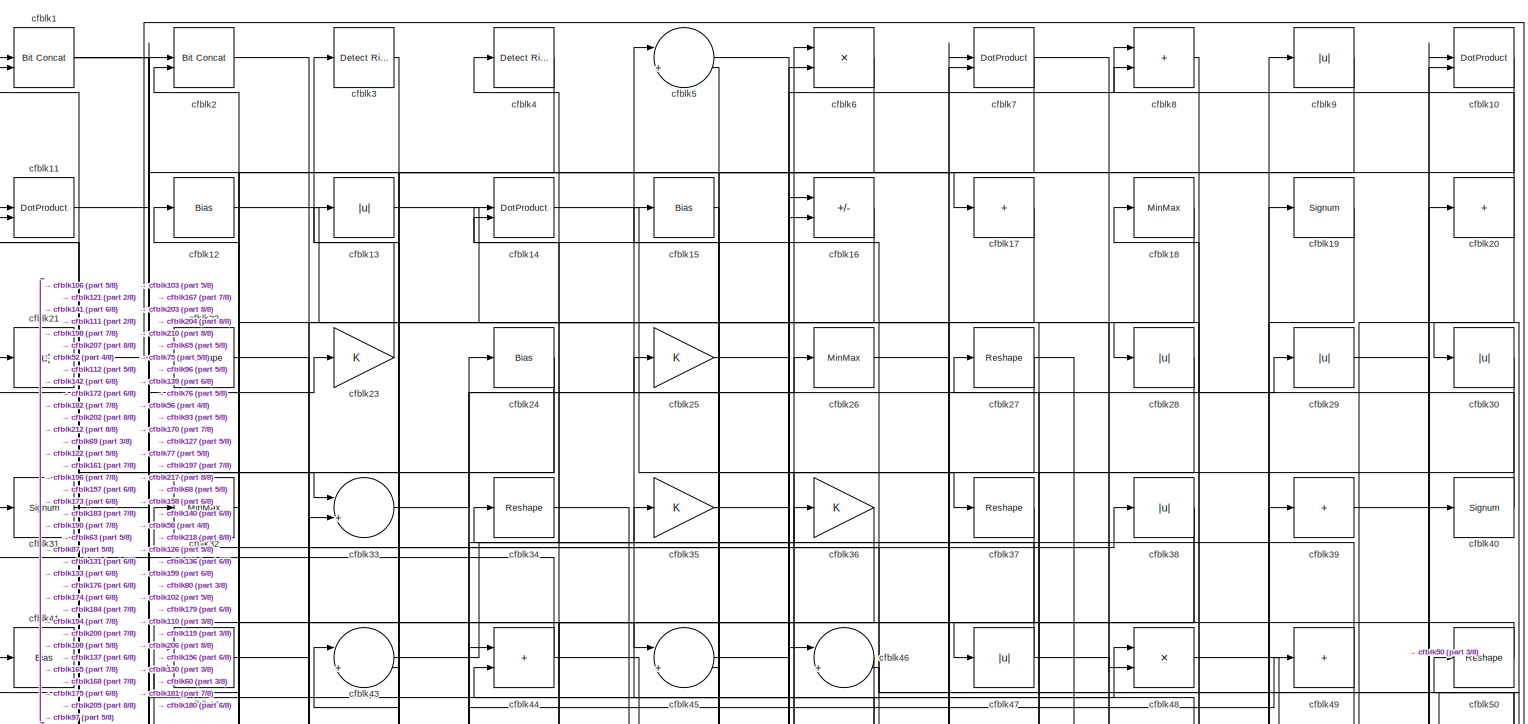
[diagram: root canvas - part 1/8, full width, top band]
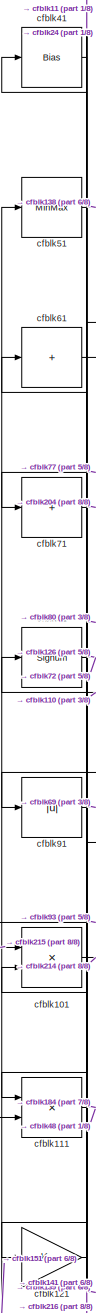
[diagram: root canvas - part 2/8, middle left region]
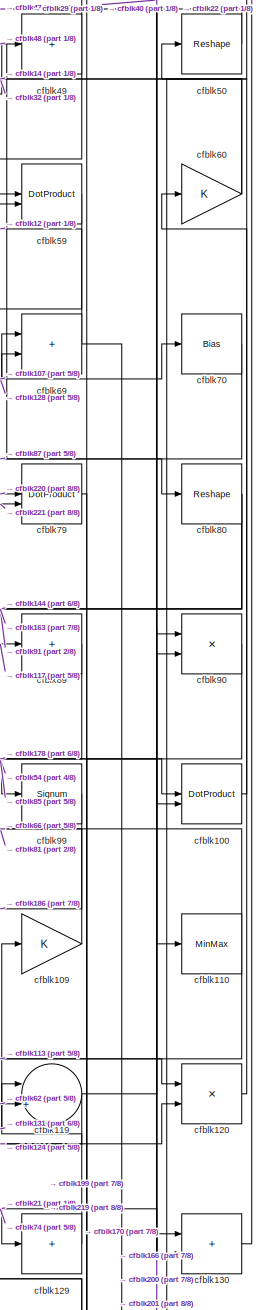
[diagram: root canvas - part 3/8, middle right region]
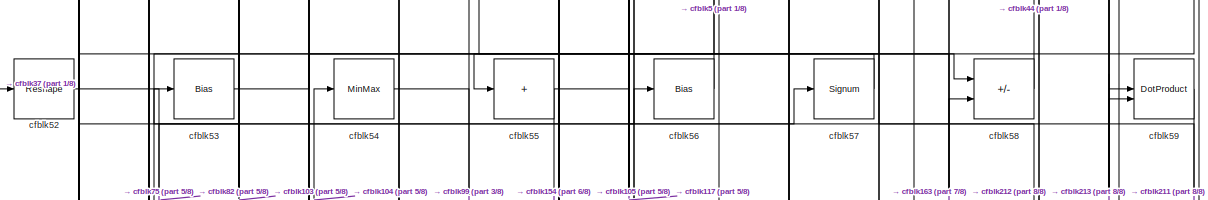
[diagram: root canvas - part 4/8, full width, top band]
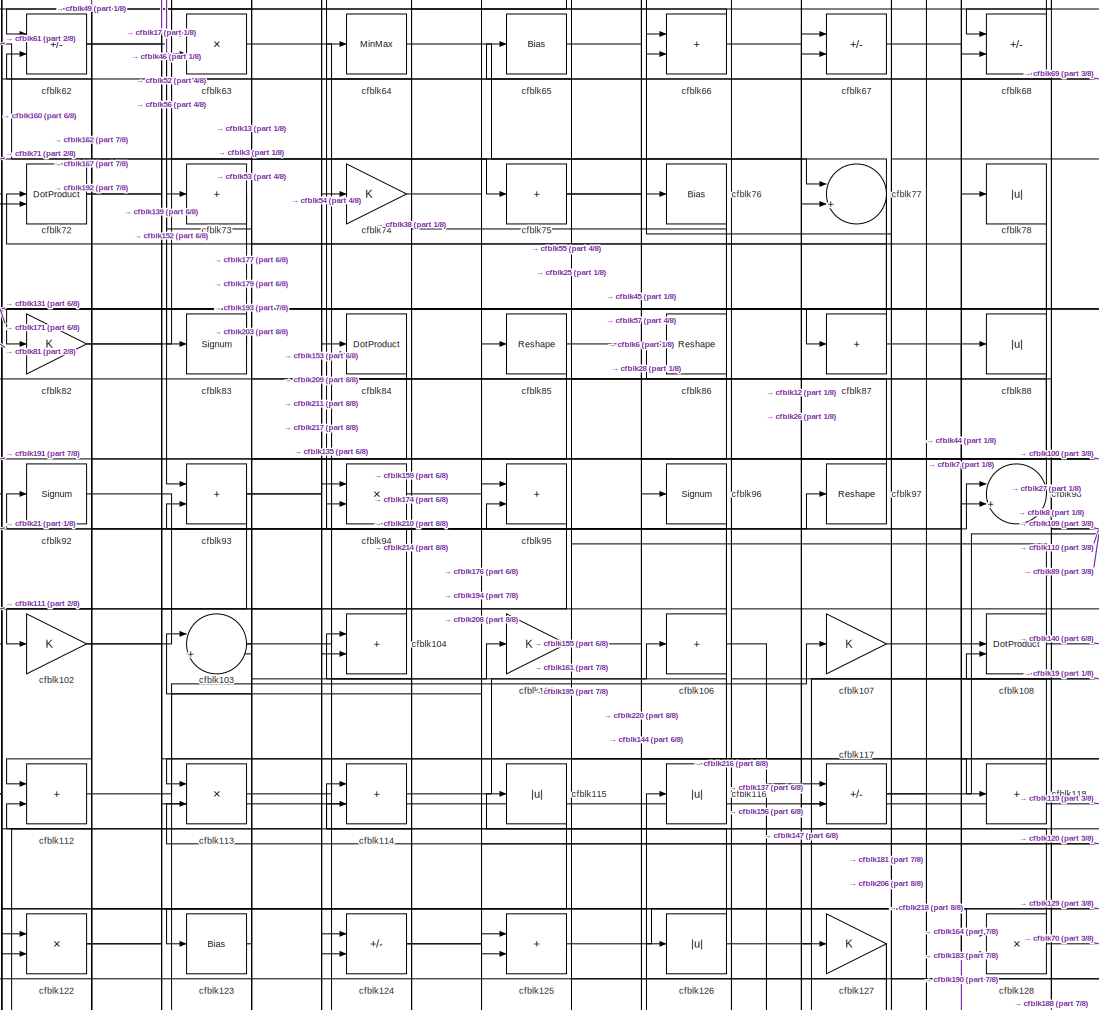
[diagram: root canvas - part 5/8, central region]
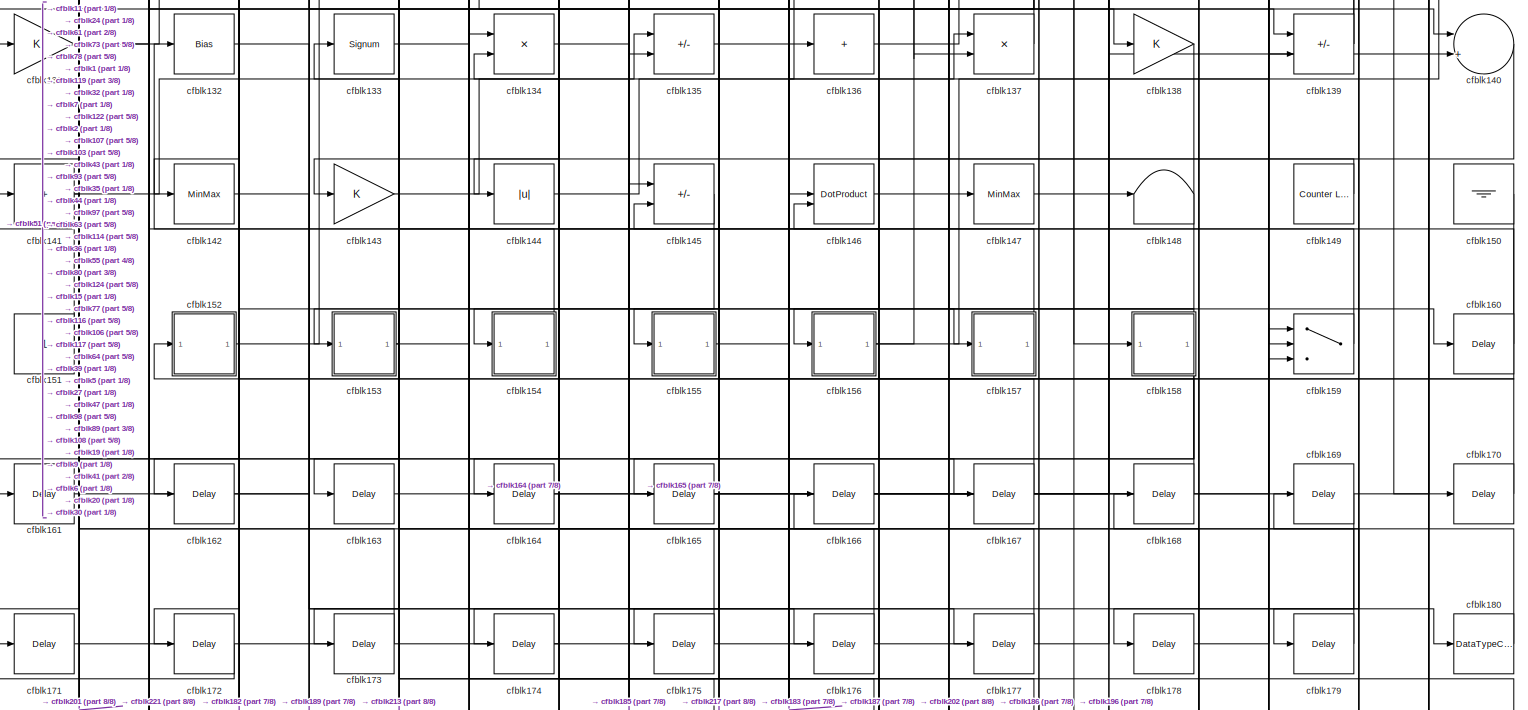
[diagram: root canvas - part 6/8, full width, bottom band]
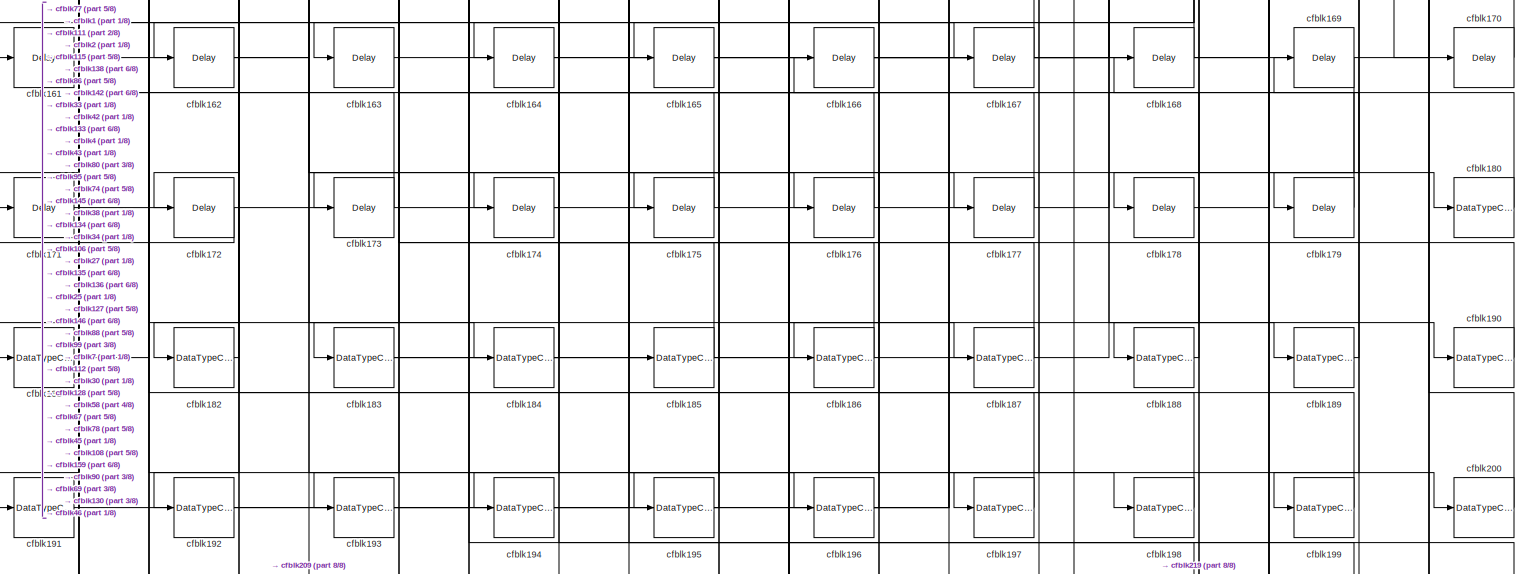
[diagram: root canvas - part 7/8, full width, bottom band]
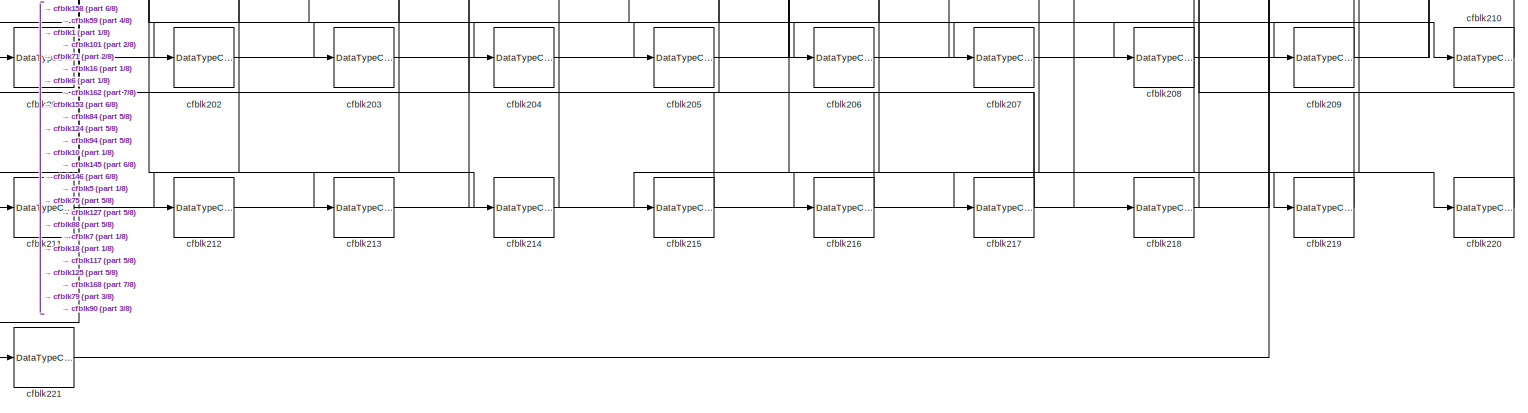
[diagram: root canvas - part 8/8, full width, bottom band]
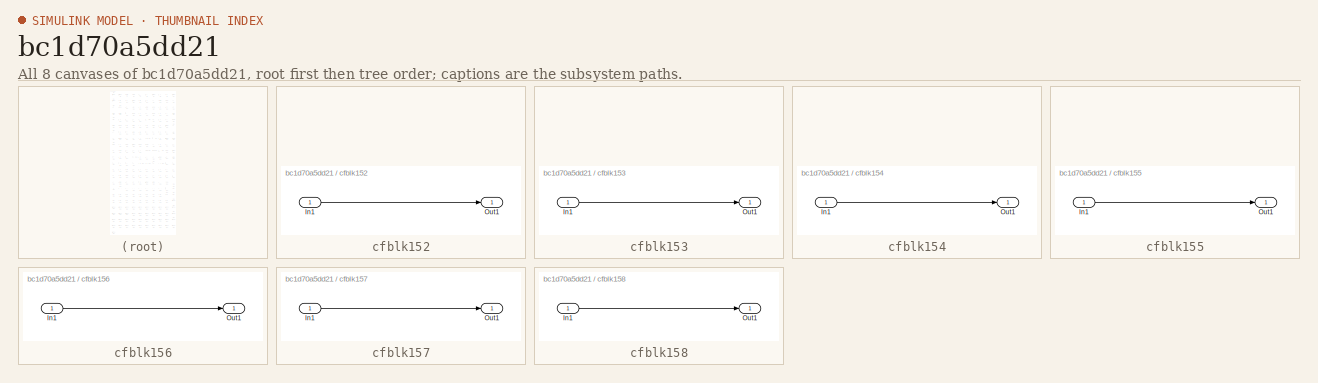
[diagram: thumbnail index - all 8 canvases of the model, root first then tree order]
MODEL slx_bc1d70a5dd21
KIND model
CONFIG AbsTol = auto
CONFIG EnableMultiTasking = off
CONFIG FixedStep = auto
CONFIG MaxStep = auto
CONFIG MinStep = auto
CONFIG RelTol = 1e-3
CONFIG SampleTimeConstraint = Unconstrained
CONFIG SolverName = VariableStepAuto
CONFIG StartTime = 0.0
CONFIG StopTime = 10.0
BLOCK [Reference] cfblk1  REF=hdlsllib/Logic and Bit
Operations/Bit Concat
  SourceBlock = hdlsllib/Logic and Bit\nOperations/Bit Concat
  SourceType = Bit Concat
BLOCK [DotProduct] cfblk10
  OutDataTypeStr = Inherit: Inherit via internal rule
BLOCK [DotProduct] cfblk100
  OutDataTypeStr = Inherit: Inherit via internal rule
BLOCK [Product] cfblk101
  Inputs = */
  RndMeth = Zero
  SaturateOnIntegerOverflow = on
BLOCK [Gain] cfblk102
BLOCK [Sum] cfblk103
  Inputs = |++
BLOCK [Sum] cfblk104
  IconShape = rectangular
BLOCK [Gain] cfblk105
BLOCK [Sum] cfblk106
  IconShape = rectangular
  Inputs = +
BLOCK [Gain] cfblk107
BLOCK [DotProduct] cfblk108
  OutDataTypeStr = Inherit: Inherit via internal rule
BLOCK [Gain] cfblk109
BLOCK [DotProduct] cfblk11
  OutDataTypeStr = Inherit: Inherit via internal rule
BLOCK [MinMax] cfblk110
BLOCK [Product] cfblk111
  Inputs = */
  RndMeth = Zero
  SaturateOnIntegerOverflow = on
BLOCK [Sum] cfblk112
  IconShape = rectangular
BLOCK [Product] cfblk113
  Inputs = */
  RndMeth = Zero
  SaturateOnIntegerOverflow = on
BLOCK [Sum] cfblk114
  IconShape = rectangular
BLOCK [Abs] cfblk115
  SaturateOnIntegerOverflow = off
BLOCK [Abs] cfblk116
  SaturateOnIntegerOverflow = off
BLOCK [Sum] cfblk117
  IconShape = rectangular
  Inputs = +-
BLOCK [Sum] cfblk118
  IconShape = rectangular
  Inputs = +
BLOCK [Sum] cfblk119
  Inputs = |++
BLOCK [Bias] cfblk12
  Bias = 0.0
  SaturateOnIntegerOverflow = off
BLOCK [Product] cfblk120
  Inputs = */
  RndMeth = Zero
  SaturateOnIntegerOverflow = on
BLOCK [Gain] cfblk121
BLOCK [Product] cfblk122
  Inputs = */
  RndMeth = Zero
  SaturateOnIntegerOverflow = on
BLOCK [Bias] cfblk123
  Bias = 0.0
  SaturateOnIntegerOverflow = off
BLOCK [Sum] cfblk124
  IconShape = rectangular
  Inputs = +-
BLOCK [Sum] cfblk125
  IconShape = rectangular
BLOCK [Abs] cfblk126
  SaturateOnIntegerOverflow = off
BLOCK [Gain] cfblk127
BLOCK [Product] cfblk128
  Inputs = */
  RndMeth = Zero
  SaturateOnIntegerOverflow = on
BLOCK [Sum] cfblk129
  IconShape = rectangular
  Inputs = +
BLOCK [Abs] cfblk13
  SaturateOnIntegerOverflow = off
BLOCK [Sum] cfblk130
  IconShape = rectangular
BLOCK [Gain] cfblk131
BLOCK [Bias] cfblk132
  Bias = 0.0
  SaturateOnIntegerOverflow = off
BLOCK [Signum] cfblk133
BLOCK [Product] cfblk134
  Inputs = */
  RndMeth = Zero
  SaturateOnIntegerOverflow = on
BLOCK [Sum] cfblk135
  IconShape = rectangular
  Inputs = +-
BLOCK [Sum] cfblk136
  IconShape = rectangular
  Inputs = +
BLOCK [Product] cfblk137
  Inputs = */
  RndMeth = Zero
  SaturateOnIntegerOverflow = on
BLOCK [Gain] cfblk138
BLOCK [Sum] cfblk139
  IconShape = rectangular
  Inputs = +-
BLOCK [DotProduct] cfblk14
  OutDataTypeStr = Inherit: Inherit via internal rule
BLOCK [Sum] cfblk140
  Inputs = |++
BLOCK [Sum] cfblk141
  IconShape = rectangular
  Inputs = +
BLOCK [MinMax] cfblk142
BLOCK [Gain] cfblk143
BLOCK [Abs] cfblk144
  SaturateOnIntegerOverflow = off
BLOCK [Sum] cfblk145
  IconShape = rectangular
  Inputs = +-
BLOCK [DotProduct] cfblk146
  OutDataTypeStr = Inherit: Inherit via internal rule
BLOCK [MinMax] cfblk147
BLOCK [Terminator] cfblk148
BLOCK [Reference] cfblk149  REF=hdlsllib/Sources/Counter
Limited
  SourceBlock = hdlsllib/Sources/Counter\nLimited
  SourceType = Counter Limited
BLOCK [Bias] cfblk15
  Bias = 0.0
  SaturateOnIntegerOverflow = off
BLOCK [Ground] cfblk150
BLOCK [Constant] cfblk151
  SampleTime = -1
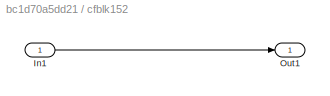
BLOCK [SubSystem] cfblk152
  LibrarySourceBlock = hdlsllib/Ports &\nSubsystems/Subsystem
BLOCK [Inport] cfblk152/In1
BLOCK [Outport] cfblk152/Out1
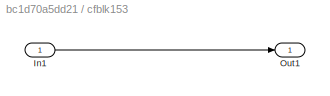
BLOCK [SubSystem] cfblk153
  LibrarySourceBlock = hdlsllib/Ports &\nSubsystems/Subsystem
BLOCK [Inport] cfblk153/In1
BLOCK [Outport] cfblk153/Out1
BLOCK [SubSystem] cfblk154
  LibrarySourceBlock = hdlsllib/Ports &\nSubsystems/Subsystem
BLOCK [Inport] cfblk154/In1
BLOCK [Outport] cfblk154/Out1
BLOCK [SubSystem] cfblk155
  LibrarySourceBlock = hdlsllib/Ports &\nSubsystems/Subsystem
BLOCK [Inport] cfblk155/In1
BLOCK [Outport] cfblk155/Out1
BLOCK [SubSystem] cfblk156
  LibrarySourceBlock = hdlsllib/Ports &\nSubsystems/Subsystem
BLOCK [Inport] cfblk156/In1
BLOCK [Outport] cfblk156/Out1
BLOCK [SubSystem] cfblk157
  LibrarySourceBlock = hdlsllib/Ports &\nSubsystems/Subsystem
BLOCK [Inport] cfblk157/In1
BLOCK [Outport] cfblk157/Out1
BLOCK [SubSystem] cfblk158
  LibrarySourceBlock = hdlsllib/Ports &\nSubsystems/Subsystem
BLOCK [Inport] cfblk158/In1
BLOCK [Outport] cfblk158/Out1
BLOCK [Switch] cfblk159
  InputSameDT = off
  SaturateOnIntegerOverflow = off
BLOCK [Sum] cfblk16
  IconShape = rectangular
  Inputs = +-
BLOCK [Delay] cfblk160
  InputPortMap = u0
  SampleTime = 1
BLOCK [Delay] cfblk161
  InputPortMap = u0
  SampleTime = 1
BLOCK [Delay] cfblk162
  InputPortMap = u0
  SampleTime = 1
BLOCK [Delay] cfblk163
  InputPortMap = u0
  SampleTime = 1
BLOCK [Delay] cfblk164
  InputPortMap = u0
  SampleTime = 1
BLOCK [Delay] cfblk165
  InputPortMap = u0
  SampleTime = 1
BLOCK [Delay] cfblk166
  InputPortMap = u0
  SampleTime = 1
BLOCK [Delay] cfblk167
  InputPortMap = u0
  SampleTime = 1
BLOCK [Delay] cfblk168
  InputPortMap = u0
  SampleTime = 1
BLOCK [Delay] cfblk169
  InputPortMap = u0
  SampleTime = 1
BLOCK [Sum] cfblk17
  IconShape = rectangular
  Inputs = +
BLOCK [Delay] cfblk170
  InputPortMap = u0
  SampleTime = 1
BLOCK [Delay] cfblk171
  InputPortMap = u0
  SampleTime = 1
BLOCK [Delay] cfblk172
  InputPortMap = u0
  SampleTime = 1
BLOCK [Delay] cfblk173
  InputPortMap = u0
  SampleTime = 1
BLOCK [Delay] cfblk174
  InputPortMap = u0
  SampleTime = 1
BLOCK [Delay] cfblk175
  InputPortMap = u0
  SampleTime = 1
BLOCK [Delay] cfblk176
  InputPortMap = u0
  SampleTime = 1
BLOCK [Delay] cfblk177
  InputPortMap = u0
  SampleTime = 1
BLOCK [Delay] cfblk178
  InputPortMap = u0
  SampleTime = 1
BLOCK [Delay] cfblk179
  InputPortMap = u0
  SampleTime = 1
BLOCK [MinMax] cfblk18
BLOCK [DataTypeConversion] cfblk180
  OutDataTypeStr = uint8
  RndMeth = Floor
  SaturateOnIntegerOverflow = off
BLOCK [DataTypeConversion] cfblk181
  OutDataTypeStr = uint8
  RndMeth = Floor
  SaturateOnIntegerOverflow = off
BLOCK [DataTypeConversion] cfblk182
  OutDataTypeStr = uint8
  RndMeth = Floor
  SaturateOnIntegerOverflow = off
BLOCK [DataTypeConversion] cfblk183
  RndMeth = Floor
  SaturateOnIntegerOverflow = off
BLOCK [DataTypeConversion] cfblk184
  OutDataTypeStr = uint8
  RndMeth = Floor
  SaturateOnIntegerOverflow = off
BLOCK [DataTypeConversion] cfblk185
  OutDataTypeStr = uint8
  RndMeth = Floor
  SaturateOnIntegerOverflow = off
BLOCK [DataTypeConversion] cfblk186
  OutDataTypeStr = uint8
  RndMeth = Floor
  SaturateOnIntegerOverflow = off
BLOCK [DataTypeConversion] cfblk187
  OutDataTypeStr = uint8
  RndMeth = Floor
  SaturateOnIntegerOverflow = off
BLOCK [DataTypeConversion] cfblk188
  OutDataTypeStr = uint8
  RndMeth = Floor
  SaturateOnIntegerOverflow = off
BLOCK [DataTypeConversion] cfblk189
  OutDataTypeStr = uint8
  RndMeth = Floor
  SaturateOnIntegerOverflow = off
BLOCK [Signum] cfblk19
BLOCK [DataTypeConversion] cfblk190
  OutDataTypeStr = uint8
  RndMeth = Floor
  SaturateOnIntegerOverflow = off
BLOCK [DataTypeConversion] cfblk191
  OutDataTypeStr = uint8
  RndMeth = Floor
  SaturateOnIntegerOverflow = off
BLOCK [DataTypeConversion] cfblk192
  OutDataTypeStr = uint8
  RndMeth = Floor
  SaturateOnIntegerOverflow = off
BLOCK [DataTypeConversion] cfblk193
  OutDataTypeStr = uint8
  RndMeth = Floor
  SaturateOnIntegerOverflow = off
BLOCK [DataTypeConversion] cfblk194
  OutDataTypeStr = uint8
  RndMeth = Floor
  SaturateOnIntegerOverflow = off
BLOCK [DataTypeConversion] cfblk195
  OutDataTypeStr = uint8
  RndMeth = Floor
  SaturateOnIntegerOverflow = off
BLOCK [DataTypeConversion] cfblk196
  RndMeth = Floor
  SaturateOnIntegerOverflow = off
BLOCK [DataTypeConversion] cfblk197
  OutDataTypeStr = uint8
  RndMeth = Floor
  SaturateOnIntegerOverflow = off
BLOCK [DataTypeConversion] cfblk198
  OutDataTypeStr = uint8
  RndMeth = Floor
  SaturateOnIntegerOverflow = off
BLOCK [DataTypeConversion] cfblk199
  OutDataTypeStr = uint8
  RndMeth = Floor
  SaturateOnIntegerOverflow = off
BLOCK [Reference] cfblk2  REF=hdlsllib/Logic and Bit
Operations/Bit Concat
  SourceBlock = hdlsllib/Logic and Bit\nOperations/Bit Concat
  SourceType = Bit Concat
BLOCK [Sum] cfblk20
  IconShape = rectangular
  Inputs = +
BLOCK [DataTypeConversion] cfblk200
  OutDataTypeStr = uint8
  RndMeth = Floor
  SaturateOnIntegerOverflow = off
BLOCK [DataTypeConversion] cfblk201
  OutDataTypeStr = uint8
  RndMeth = Floor
  SaturateOnIntegerOverflow = off
BLOCK [DataTypeConversion] cfblk202
  OutDataTypeStr = uint8
  RndMeth = Floor
  SaturateOnIntegerOverflow = off
BLOCK [DataTypeConversion] cfblk203
  OutDataTypeStr = uint8
  RndMeth = Floor
  SaturateOnIntegerOverflow = off
BLOCK [DataTypeConversion] cfblk204
  OutDataTypeStr = uint8
  RndMeth = Floor
  SaturateOnIntegerOverflow = off
BLOCK [DataTypeConversion] cfblk205
  OutDataTypeStr = uint8
  RndMeth = Floor
  SaturateOnIntegerOverflow = off
BLOCK [DataTypeConversion] cfblk206
  OutDataTypeStr = uint8
  RndMeth = Floor
  SaturateOnIntegerOverflow = off
BLOCK [DataTypeConversion] cfblk207
  OutDataTypeStr = uint8
  RndMeth = Floor
  SaturateOnIntegerOverflow = off
BLOCK [DataTypeConversion] cfblk208
  RndMeth = Floor
  SaturateOnIntegerOverflow = off
BLOCK [DataTypeConversion] cfblk209
  OutDataTypeStr = uint8
  RndMeth = Floor
  SaturateOnIntegerOverflow = off
BLOCK [Abs] cfblk21
  SaturateOnIntegerOverflow = off
BLOCK [DataTypeConversion] cfblk210
  OutDataTypeStr = uint8
  RndMeth = Floor
  SaturateOnIntegerOverflow = off
BLOCK [DataTypeConversion] cfblk211
  OutDataTypeStr = uint8
  RndMeth = Floor
  SaturateOnIntegerOverflow = off
BLOCK [DataTypeConversion] cfblk212
  OutDataTypeStr = uint8
  RndMeth = Floor
  SaturateOnIntegerOverflow = off
BLOCK [DataTypeConversion] cfblk213
  OutDataTypeStr = uint8
  RndMeth = Floor
  SaturateOnIntegerOverflow = off
BLOCK [DataTypeConversion] cfblk214
  OutDataTypeStr = uint8
  RndMeth = Floor
  SaturateOnIntegerOverflow = off
BLOCK [DataTypeConversion] cfblk215
  OutDataTypeStr = uint8
  RndMeth = Floor
  SaturateOnIntegerOverflow = off
BLOCK [DataTypeConversion] cfblk216
  OutDataTypeStr = uint8
  RndMeth = Floor
  SaturateOnIntegerOverflow = off
BLOCK [DataTypeConversion] cfblk217
  RndMeth = Floor
  SaturateOnIntegerOverflow = off
BLOCK [DataTypeConversion] cfblk218
  OutDataTypeStr = uint8
  RndMeth = Floor
  SaturateOnIntegerOverflow = off
BLOCK [DataTypeConversion] cfblk219
  OutDataTypeStr = uint8
  RndMeth = Floor
  SaturateOnIntegerOverflow = off
BLOCK [Reshape] cfblk22
BLOCK [DataTypeConversion] cfblk220
  OutDataTypeStr = uint8
  RndMeth = Floor
  SaturateOnIntegerOverflow = off
BLOCK [DataTypeConversion] cfblk221
  OutDataTypeStr = uint8
  RndMeth = Floor
  SaturateOnIntegerOverflow = off
BLOCK [Gain] cfblk23
BLOCK [Bias] cfblk24
  Bias = 0.0
  SaturateOnIntegerOverflow = off
BLOCK [Gain] cfblk25
BLOCK [MinMax] cfblk26
BLOCK [Reshape] cfblk27
BLOCK [Abs] cfblk28
  SaturateOnIntegerOverflow = off
BLOCK [Abs] cfblk29
  SaturateOnIntegerOverflow = off
BLOCK [Reference] cfblk3  REF=hdlsllib/Logic and Bit
Operations/Detect Rise
Positive
  SourceBlock = hdlsllib/Logic and Bit\nOperations/Detect Rise\nPositive
  SourceType = Detect Rise Positive
BLOCK [Abs] cfblk30
  SaturateOnIntegerOverflow = off
BLOCK [Signum] cfblk31
BLOCK [MinMax] cfblk32
BLOCK [Sum] cfblk33
  Inputs = |++
BLOCK [Reshape] cfblk34
BLOCK [Gain] cfblk35
BLOCK [Gain] cfblk36
BLOCK [Reshape] cfblk37
BLOCK [Abs] cfblk38
  SaturateOnIntegerOverflow = off
BLOCK [Sum] cfblk39
  IconShape = rectangular
  Inputs = +
BLOCK [Reference] cfblk4  REF=hdlsllib/Logic and Bit
Operations/Detect Rise
Positive
  SourceBlock = hdlsllib/Logic and Bit\nOperations/Detect Rise\nPositive
  SourceType = Detect Rise Positive
BLOCK [Signum] cfblk40
BLOCK [Bias] cfblk41
  Bias = 0.0
  SaturateOnIntegerOverflow = off
BLOCK [Product] cfblk42
  Inputs = */
  RndMeth = Zero
  SaturateOnIntegerOverflow = on
BLOCK [Sum] cfblk43
  Inputs = |++
BLOCK [Sum] cfblk44
  IconShape = rectangular
BLOCK [Sum] cfblk45
  Inputs = |++
BLOCK [Sum] cfblk46
  Inputs = |++
BLOCK [Abs] cfblk47
  SaturateOnIntegerOverflow = off
BLOCK [Product] cfblk48
  Inputs = */
  RndMeth = Zero
  SaturateOnIntegerOverflow = on
BLOCK [Sum] cfblk49
  IconShape = rectangular
  Inputs = +
BLOCK [Sum] cfblk5
  Inputs = |++
BLOCK [Reshape] cfblk50
BLOCK [MinMax] cfblk51
BLOCK [Reshape] cfblk52
BLOCK [Bias] cfblk53
  Bias = 0.0
  SaturateOnIntegerOverflow = off
BLOCK [MinMax] cfblk54
BLOCK [Sum] cfblk55
  IconShape = rectangular
  Inputs = +
BLOCK [Bias] cfblk56
  Bias = 0.0
  SaturateOnIntegerOverflow = off
BLOCK [Signum] cfblk57
BLOCK [Sum] cfblk58
  IconShape = rectangular
  Inputs = +-
BLOCK [DotProduct] cfblk59
  OutDataTypeStr = Inherit: Inherit via internal rule
BLOCK [Product] cfblk6
  Inputs = */
  RndMeth = Zero
  SaturateOnIntegerOverflow = on
BLOCK [Gain] cfblk60
BLOCK [Sum] cfblk61
  IconShape = rectangular
  Inputs = +
BLOCK [Sum] cfblk62
  IconShape = rectangular
  Inputs = +-
BLOCK [Product] cfblk63
  Inputs = */
  RndMeth = Zero
  SaturateOnIntegerOverflow = on
BLOCK [MinMax] cfblk64
BLOCK [Bias] cfblk65
  Bias = 0.0
  SaturateOnIntegerOverflow = off
BLOCK [Sum] cfblk66
  IconShape = rectangular
BLOCK [Sum] cfblk67
  IconShape = rectangular
  Inputs = +-
BLOCK [Sum] cfblk68
  IconShape = rectangular
  Inputs = +-
BLOCK [Sum] cfblk69
  IconShape = rectangular
BLOCK [DotProduct] cfblk7
  OutDataTypeStr = Inherit: Inherit via internal rule
BLOCK [Bias] cfblk70
  Bias = 0.0
  SaturateOnIntegerOverflow = off
BLOCK [Sum] cfblk71
  IconShape = rectangular
  Inputs = +
BLOCK [DotProduct] cfblk72
  OutDataTypeStr = Inherit: Inherit via internal rule
BLOCK [Sum] cfblk73
  IconShape = rectangular
  Inputs = +
BLOCK [Gain] cfblk74
BLOCK [Sum] cfblk75
  IconShape = rectangular
  Inputs = +
BLOCK [Bias] cfblk76
  Bias = 0.0
  SaturateOnIntegerOverflow = off
BLOCK [Sum] cfblk77
  Inputs = |++
BLOCK [Abs] cfblk78
  SaturateOnIntegerOverflow = off
BLOCK [DotProduct] cfblk79
  OutDataTypeStr = Inherit: Inherit via internal rule
BLOCK [Sum] cfblk8
  IconShape = rectangular
BLOCK [Reshape] cfblk80
BLOCK [Signum] cfblk81
BLOCK [Gain] cfblk82
BLOCK [Signum] cfblk83
BLOCK [DotProduct] cfblk84
  OutDataTypeStr = Inherit: Inherit via internal rule
BLOCK [Reshape] cfblk85
BLOCK [Reshape] cfblk86
BLOCK [Sum] cfblk87
  IconShape = rectangular
  Inputs = +
BLOCK [Abs] cfblk88
  SaturateOnIntegerOverflow = off
BLOCK [Sum] cfblk89
  IconShape = rectangular
  Inputs = +
BLOCK [Abs] cfblk9
  SaturateOnIntegerOverflow = off
BLOCK [Product] cfblk90
  Inputs = */
  RndMeth = Zero
  SaturateOnIntegerOverflow = on
BLOCK [Abs] cfblk91
  SaturateOnIntegerOverflow = off
BLOCK [Signum] cfblk92
BLOCK [Sum] cfblk93
  IconShape = rectangular
BLOCK [Product] cfblk94
  Inputs = */
  RndMeth = Zero
  SaturateOnIntegerOverflow = on
BLOCK [Sum] cfblk95
  IconShape = rectangular
BLOCK [Signum] cfblk96
BLOCK [Reshape] cfblk97
BLOCK [Sum] cfblk98
  Inputs = |++
BLOCK [Signum] cfblk99
LINE cfblk100:1 -> cfblk50:1
LINE cfblk101:1 -> cfblk214:1
NET cfblk102:1 -> cfblk104:2, cfblk88:1
NET cfblk103:1 -> cfblk53:1, cfblk6:2
LINE cfblk104:1 -> cfblk54:1
LINE cfblk105:1 -> cfblk57:1
NET cfblk106:1 -> cfblk137:2, cfblk195:1, cfblk21:1, cfblk62:2
LINE cfblk107:1 -> cfblk69:2
NET cfblk108:1 -> cfblk140:1, cfblk65:1
LINE cfblk109:1 -> cfblk66:1
LINE cfblk10:1 -> cfblk205:1
NET cfblk110:1 -> cfblk113:1, cfblk81:1
NET cfblk111:1 -> cfblk184:1, cfblk48:1
LINE cfblk112:1 -> cfblk85:1
LINE cfblk113:1 -> cfblk105:1
LINE cfblk114:1 -> cfblk106:1
LINE cfblk115:1 -> cfblk162:1
LINE cfblk116:1 -> cfblk92:1
NET cfblk117:1 -> cfblk218:1, cfblk89:1
LINE cfblk118:1 -> cfblk86:1
NET cfblk119:1 -> cfblk113:2, cfblk40:1
LINE cfblk11:1 -> cfblk17:1
LINE cfblk120:1 -> cfblk60:1
LINE cfblk121:1 -> cfblk11:1
NET cfblk122:1 -> cfblk139:2, cfblk38:1
LINE cfblk123:1 -> cfblk103:2
NET cfblk124:1 -> cfblk120:2, cfblk176:1
LINE cfblk125:1 -> cfblk128:1
NET cfblk126:1 -> cfblk104:1, cfblk19:1
NET cfblk127:1 -> cfblk181:1, cfblk206:1
NET cfblk128:1 -> cfblk115:1, cfblk70:1
LINE cfblk129:1 -> cfblk109:1
LINE cfblk12:1 -> cfblk127:1
LINE cfblk130:1 -> cfblk22:1
NET cfblk131:1 -> cfblk119:1, cfblk24:1
LINE cfblk132:1 -> cfblk177:1
LINE cfblk133:1 -> cfblk35:1
LINE cfblk134:1 -> cfblk185:1
LINE cfblk135:1 -> cfblk187:1
LINE cfblk136:1 -> cfblk39:1
LINE cfblk137:1 -> cfblk5:2
LINE cfblk138:1 -> cfblk182:1
NET cfblk139:1 -> cfblk41:1, cfblk6:1
LINE cfblk13:1 -> cfblk48:2
LINE cfblk140:1 -> cfblk156:1
NET cfblk141:1 -> cfblk61:1, cfblk9:1
LINE cfblk142:1 -> cfblk189:1
LINE cfblk143:1 -> cfblk135:1
LINE cfblk144:1 -> cfblk116:1
LINE cfblk145:1 -> cfblk164:1
LINE cfblk146:1 -> cfblk160:1
LINE cfblk147:1 -> cfblk148:1
LINE cfblk149:1 -> cfblk143:1
LINE cfblk14:1 -> cfblk37:1
LINE cfblk150:1 -> cfblk152:1
LINE cfblk151:1 -> cfblk51:1
LINE cfblk152/In1:1 -> cfblk152/Out1:1
LINE cfblk152:1 -> cfblk107:1
LINE cfblk153/In1:1 -> cfblk153/Out1:1
NET cfblk153:1 -> cfblk213:1, cfblk97:1
LINE cfblk154/In1:1 -> cfblk154/Out1:1
LINE cfblk154:1 -> cfblk132:1
LINE cfblk155/In1:1 -> cfblk155/Out1:1
LINE cfblk155:1 -> cfblk137:1
LINE cfblk156/In1:1 -> cfblk156/Out1:1
NET cfblk156:1 -> cfblk117:1, cfblk30:1
LINE cfblk157/In1:1 -> cfblk157/Out1:1
LINE cfblk157:1 -> cfblk43:2
LINE cfblk158/In1:1 -> cfblk158/Out1:1
NET cfblk158:1 -> cfblk153:1, cfblk201:1, cfblk221:1
LINE cfblk159:1 -> cfblk114:1
LINE cfblk15:1 -> cfblk175:1
LINE cfblk160:1 -> cfblk122:1
LINE cfblk161:1 -> cfblk33:2
LINE cfblk162:1 -> cfblk209:1
LINE cfblk163:1 -> cfblk58:2
LINE cfblk164:1 -> cfblk128:2
LINE cfblk165:1 -> cfblk159:1
LINE cfblk166:1 -> cfblk130:1
LINE cfblk167:1 -> cfblk112:2
LINE cfblk168:1 -> cfblk45:2
LINE cfblk169:1 -> cfblk188:1
LINE cfblk16:1 -> cfblk202:1
LINE cfblk170:1 -> cfblk46:2
LINE cfblk171:1 -> cfblk98:2
LINE cfblk172:1 -> cfblk1:1
LINE cfblk173:1 -> cfblk1:2
LINE cfblk174:1 -> cfblk114:2
LINE cfblk175:1 -> cfblk11:2
LINE cfblk176:1 -> cfblk44:1
LINE cfblk177:1 -> cfblk103:1
LINE cfblk178:1 -> cfblk159:3
LINE cfblk179:1 -> cfblk93:2
LINE cfblk17:1 -> cfblk63:2
LINE cfblk180:1 -> cfblk145:1
LINE cfblk181:1 -> cfblk2:1
LINE cfblk182:1 -> cfblk2:2
NET cfblk183:1 -> cfblk136:1, cfblk78:1
LINE cfblk184:1 -> cfblk4:1
LINE cfblk185:1 -> cfblk133:1
LINE cfblk186:1 -> cfblk134:1
LINE cfblk187:1 -> cfblk134:2
LINE cfblk188:1 -> cfblk108:2
LINE cfblk189:1 -> cfblk169:1
LINE cfblk18:1 -> cfblk217:1
LINE cfblk190:1 -> cfblk43:1
LINE cfblk191:1 -> cfblk67:1
LINE cfblk192:1 -> cfblk67:2
LINE cfblk193:1 -> cfblk74:1
LINE cfblk194:1 -> cfblk95:1
LINE cfblk195:1 -> cfblk95:2
NET cfblk196:1 -> cfblk146:2, cfblk7:2
LINE cfblk197:1 -> cfblk42:1
LINE cfblk198:1 -> cfblk42:2
LINE cfblk199:1 -> cfblk166:1
LINE cfblk19:1 -> cfblk159:2
NET cfblk1:1 -> cfblk139:1, cfblk198:1, cfblk207:1, cfblk33:1
LINE cfblk200:1 -> cfblk90:1
LINE cfblk201:1 -> cfblk90:2
LINE cfblk202:1 -> cfblk146:1
LINE cfblk203:1 -> cfblk16:1
LINE cfblk204:1 -> cfblk16:2
LINE cfblk205:1 -> cfblk7:1
LINE cfblk206:1 -> cfblk10:1
LINE cfblk207:1 -> cfblk10:2
NET cfblk208:1 -> cfblk125:1, cfblk215:1
LINE cfblk209:1 -> cfblk94:1
NET cfblk20:1 -> cfblk179:1, cfblk8:2
LINE cfblk210:1 -> cfblk94:2
LINE cfblk211:1 -> cfblk84:1
LINE cfblk212:1 -> cfblk59:1
LINE cfblk213:1 -> cfblk59:2
LINE cfblk214:1 -> cfblk84:2
LINE cfblk215:1 -> cfblk101:1
LINE cfblk216:1 -> cfblk101:2
NET cfblk217:1 -> cfblk124:1, cfblk145:2
LINE cfblk218:1 -> cfblk18:1
LINE cfblk219:1 -> cfblk168:1
LINE cfblk21:1 -> cfblk130:2
LINE cfblk220:1 -> cfblk79:1
LINE cfblk221:1 -> cfblk79:2
LINE cfblk22:1 -> cfblk45:1
LINE cfblk23:1 -> cfblk3:1
NET cfblk24:1 -> cfblk121:1, cfblk141:1
LINE cfblk25:1 -> cfblk167:1
LINE cfblk26:1 -> cfblk77:2
NET cfblk27:1 -> cfblk158:1, cfblk165:1
LINE cfblk28:1 -> cfblk76:1
LINE cfblk29:1 -> cfblk110:1
LINE cfblk2:1 -> cfblk180:1
LINE cfblk30:1 -> cfblk197:1
LINE cfblk31:1 -> cfblk23:1
LINE cfblk32:1 -> cfblk172:1
LINE cfblk33:1 -> cfblk29:1
LINE cfblk34:1 -> cfblk200:1
NET cfblk35:1 -> cfblk157:1, cfblk15:1
LINE cfblk36:1 -> cfblk174:1
LINE cfblk37:1 -> cfblk52:1
NET cfblk38:1 -> cfblk112:1, cfblk194:1
LINE cfblk39:1 -> cfblk20:1
LINE cfblk3:1 -> cfblk63:1
LINE cfblk40:1 -> cfblk28:1
LINE cfblk41:1 -> cfblk111:1
LINE cfblk42:1 -> cfblk196:1
LINE cfblk43:1 -> cfblk36:1
NET cfblk44:1 -> cfblk108:1, cfblk31:1
LINE cfblk45:1 -> cfblk96:1
LINE cfblk46:1 -> cfblk93:1
NET cfblk47:1 -> cfblk140:2, cfblk34:1
LINE cfblk48:1 -> cfblk80:1
NET cfblk49:1 -> cfblk102:1, cfblk14:2
LINE cfblk4:1 -> cfblk183:1
LINE cfblk50:1 -> cfblk47:1
LINE cfblk51:1 -> cfblk138:1
LINE cfblk52:1 -> cfblk75:1
LINE cfblk53:1 -> cfblk58:1
LINE cfblk54:1 -> cfblk99:1
NET cfblk55:1 -> cfblk117:2, cfblk154:1
LINE cfblk56:1 -> cfblk5:1
LINE cfblk57:1 -> cfblk55:1
LINE cfblk58:1 -> cfblk44:2
LINE cfblk59:1 -> cfblk211:1
LINE cfblk5:1 -> cfblk210:1
NET cfblk60:1 -> cfblk14:1, cfblk32:1
LINE cfblk61:1 -> cfblk77:1
NET cfblk62:1 -> cfblk119:2, cfblk83:1
LINE cfblk63:1 -> cfblk135:2
LINE cfblk64:1 -> cfblk147:1
LINE cfblk65:1 -> cfblk46:1
NET cfblk66:1 -> cfblk100:2, cfblk62:1
LINE cfblk67:1 -> cfblk190:1
LINE cfblk68:1 -> cfblk27:1
NET cfblk69:1 -> cfblk12:1, cfblk170:1
LINE cfblk6:1 -> cfblk212:1
LINE cfblk70:1 -> cfblk87:1
LINE cfblk71:1 -> cfblk204:1
NET cfblk72:1 -> cfblk118:1, cfblk66:2
LINE cfblk73:1 -> cfblk171:1
LINE cfblk74:1 -> cfblk129:1
NET cfblk75:1 -> cfblk220:1, cfblk8:1
LINE cfblk76:1 -> cfblk124:2
NET cfblk77:1 -> cfblk155:1, cfblk161:1, cfblk71:1
LINE cfblk78:1 -> cfblk131:1
LINE cfblk79:1 -> cfblk219:1
NET cfblk7:1 -> cfblk142:1, cfblk68:2
NET cfblk80:1 -> cfblk144:1, cfblk163:1, cfblk91:1
NET cfblk81:1 -> cfblk126:1, cfblk72:2
NET cfblk82:1 -> cfblk125:2, cfblk56:1
LINE cfblk83:1 -> cfblk82:1
LINE cfblk84:1 -> cfblk203:1
NET cfblk85:1 -> cfblk100:1, cfblk123:1
NET cfblk86:1 -> cfblk192:1, cfblk64:1
NET cfblk87:1 -> cfblk120:1, cfblk13:1
NET cfblk88:1 -> cfblk191:1, cfblk216:1, cfblk72:1
LINE cfblk89:1 -> cfblk178:1
LINE cfblk8:1 -> cfblk68:1
LINE cfblk90:1 -> cfblk199:1
LINE cfblk91:1 -> cfblk69:1
LINE cfblk92:1 -> cfblk98:1
NET cfblk93:1 -> cfblk111:2, cfblk26:1, cfblk49:1
LINE cfblk94:1 -> cfblk208:1
LINE cfblk95:1 -> cfblk193:1
LINE cfblk96:1 -> cfblk122:2
LINE cfblk97:1 -> cfblk25:1
LINE cfblk98:1 -> cfblk73:1
LINE cfblk99:1 -> cfblk186:1
LINE cfblk9:1 -> cfblk173:1
note: NET lines group one-source signal fan-out (src -> all destinations, sorted); 1:1 wires keep LINE
